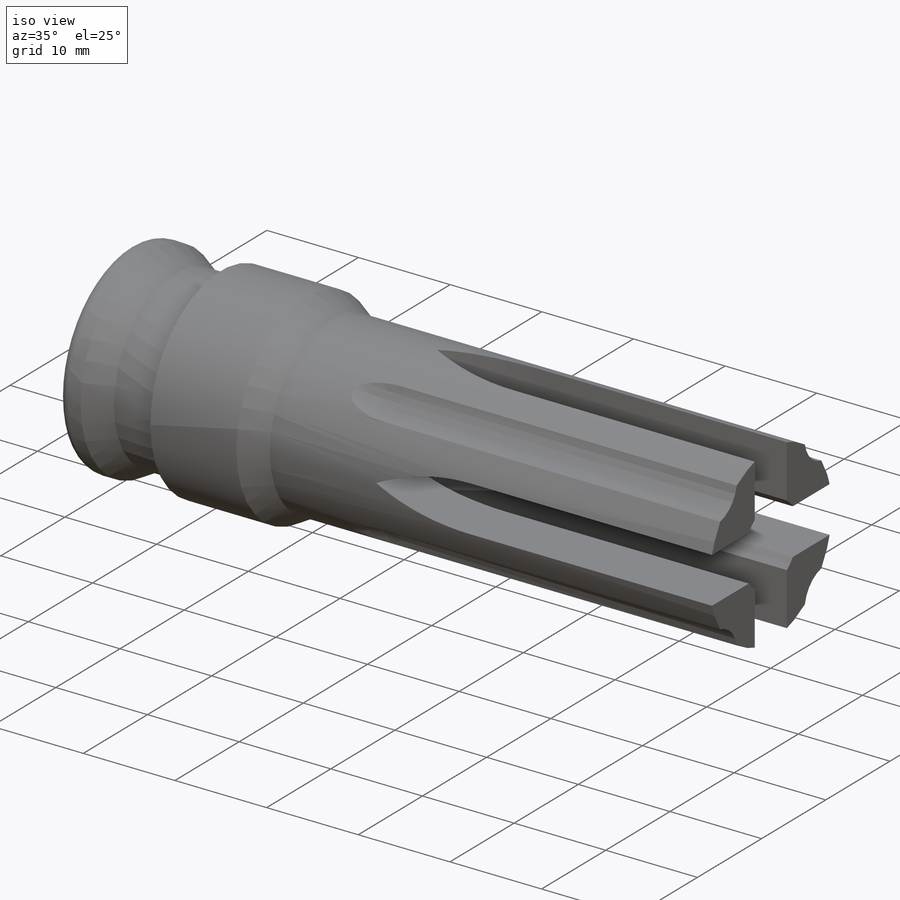
[diagram: iso view]
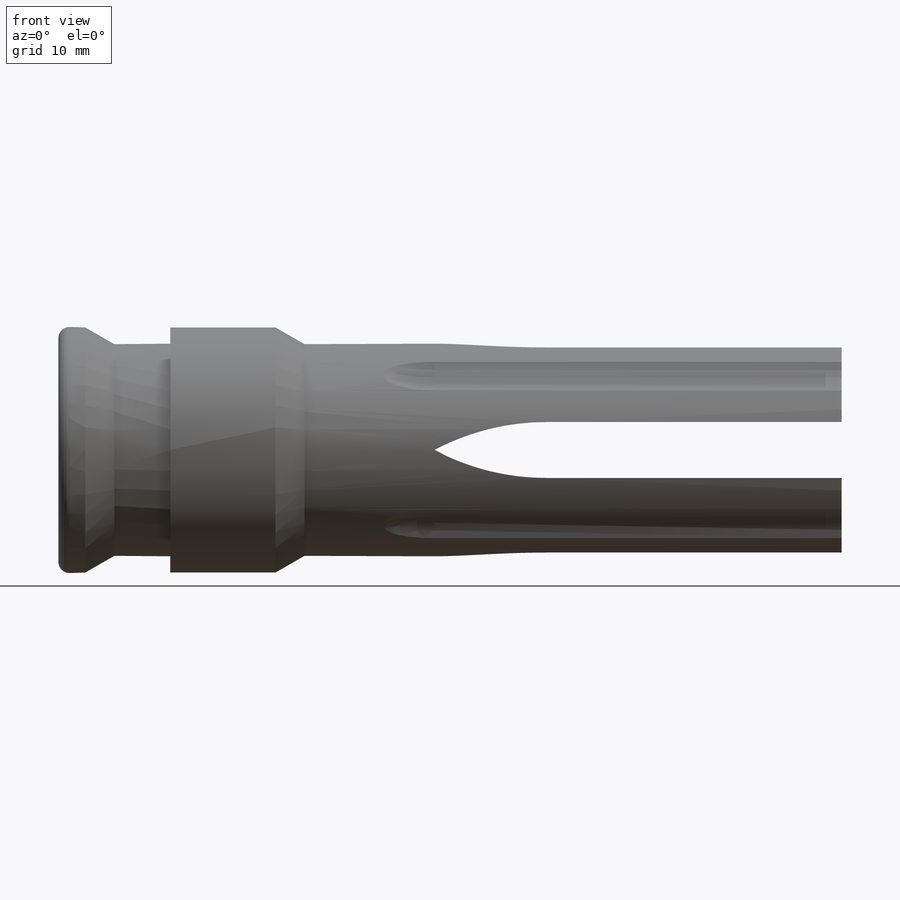
[diagram: front view]
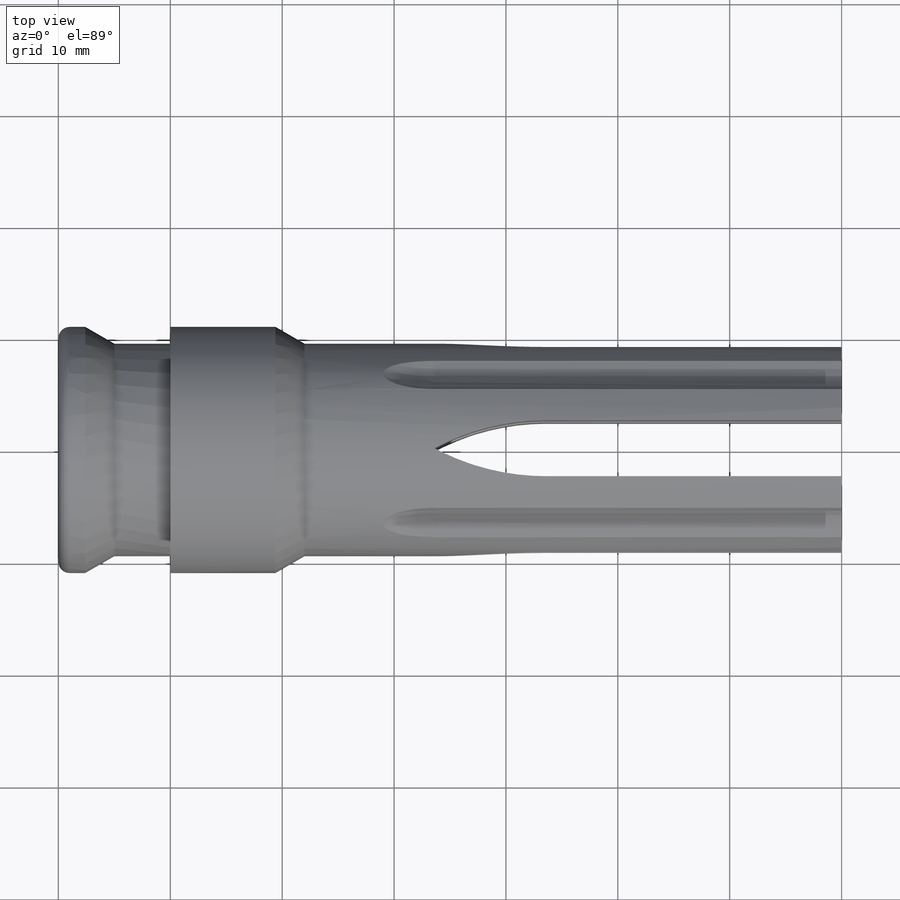
[diagram: top view]
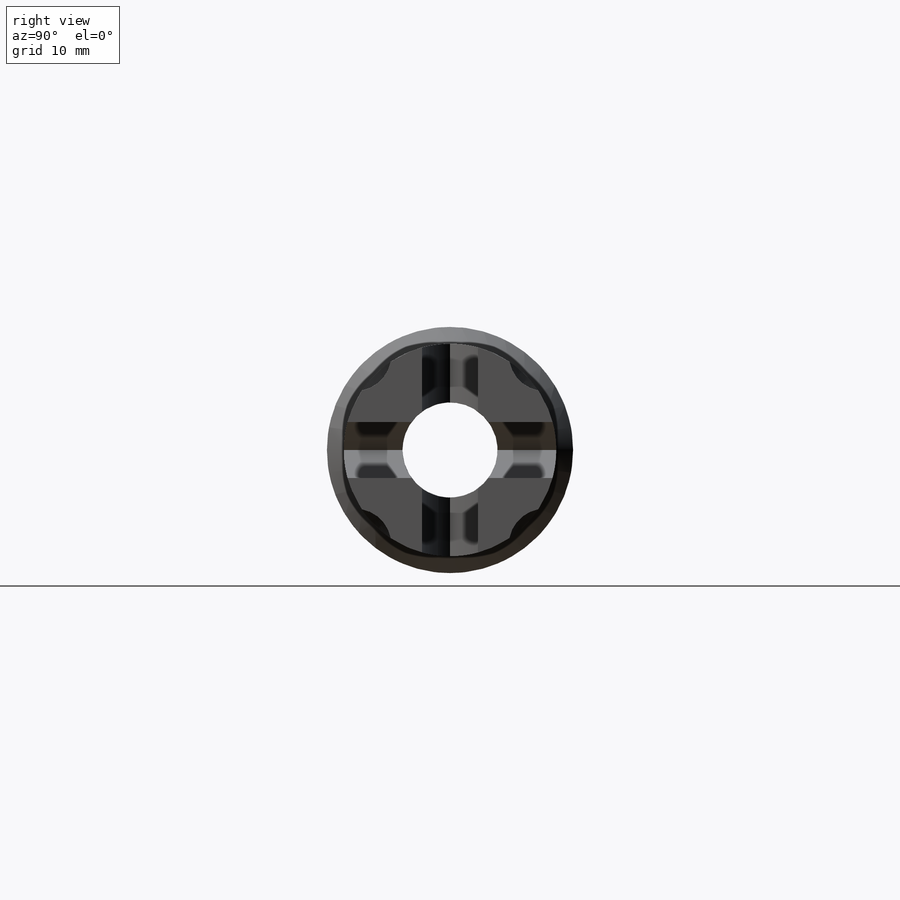
[diagram: right view]
SOLIDWORKS PART (.sldprt)
format: sldprt  version: not decoded by parser v0  size: 354,304 bytes
history: native  units: mm
features: sketch x14, extrude x5, chamfer x2, fillet x2, pattern_circular x2, material x1, revolve x1, cut_extrude x1, sweep x1 (+12 scaffold rows collapsed)
feature tree (41):
  scaffold x12  (default folders/planes/origin — collapsed)
  material  "Material <not specified>"
  sketch  "Sketch1"  dims[c1.D1=17.0mm c1.D2=6.5mm c2.D1=2.0mm]
  extrude  "Boss-Extrude1"  Depth=70mm
  sketch  "Sketch2"  dims[D1=1.0mm]
  extrude  "Boss-Extrude2"  Depth=5mm
  sketch  "3DSketch1"  dims[D1=10.0mm]
  sketch  "Sketch3"  dims[D1=12.0mm]
  extrude  "Boss-Extrude3"  Depth=12mm
  chamfer  "Chamfer2"  Distance=1.5mm Angle=60deg
  sketch  "Sketch4"  dims[c1.D1=4.25mm c1.D2=10.0mm c2.D1=1.5mm]
  revolve  "Revolve1"  Angle=360deg
  sketch  "Sketch5"  dims[c1.D1=70.0mm c1.D2=7.0mm c1.D3=10.0mm c2.D1=5.0mm c2.D2=2.5mm c2.D3=10.0mm c2.D4=10.0mm]
  cut_extrude  "Cut-Extrude1"  Depth=12mm
  sketch  "Sketch8"  dims[D1=~7.504059mm]
  sketch  "Sketch9"  dims[D1=~12.557526mm]
  extrude  "Boss-Extrude4"  Depth=5mm
  chamfer  "Chamfer3"  Distance=1.5mm Angle=60deg
  fillet  "Fillet1"  Radius=1mm
  fillet  "Fillet2"  Radius=1mm
  sketch  "Sketch10"  dims[D1=~7.072602mm]
  extrude  "Boss-Extrude5"  [1 undecoded]
  pattern_circular  "CirPattern1"  Count=4 Angle=360deg
  sketch  "Sketch11"  dims[D1=1.0mm]
  sketch  "3DSketch2"
  sketch  "3DSketch3"
  sketch  "3DSketch4"
  sketch  "Sketch12"
  sweep  "Cut-Sweep1"
  pattern_circular  "CirPattern2"  Count=4 Angle=360deg
decode coverage: 22 of 28 modeling features carry decoded parameters
note: ~ marks probable driven/reference dimensions
note: 1 parameter value undecoded
note: suppression state not decoded; provenance and decode notes live in map.json
